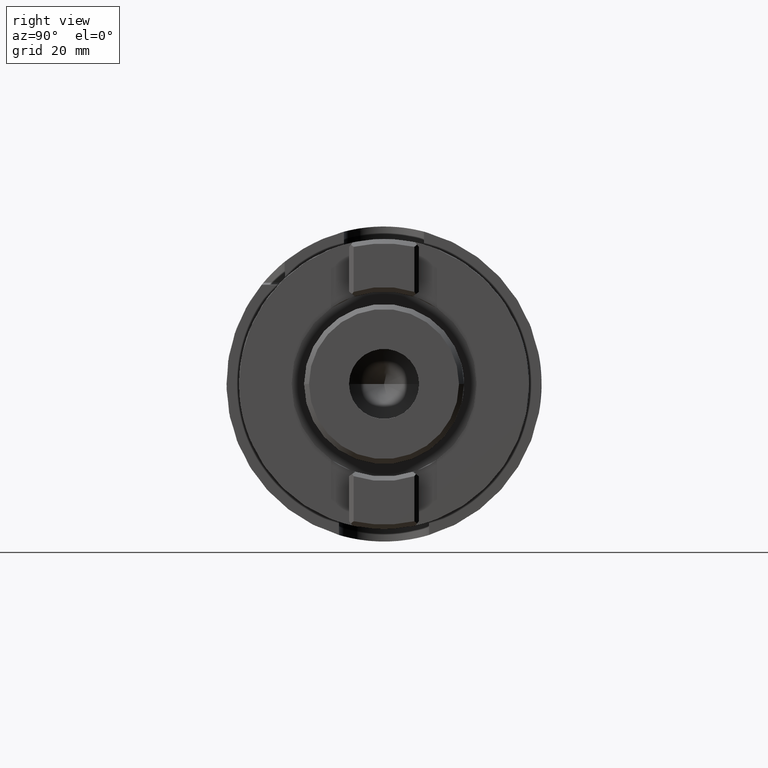
[diagram: clean part render]
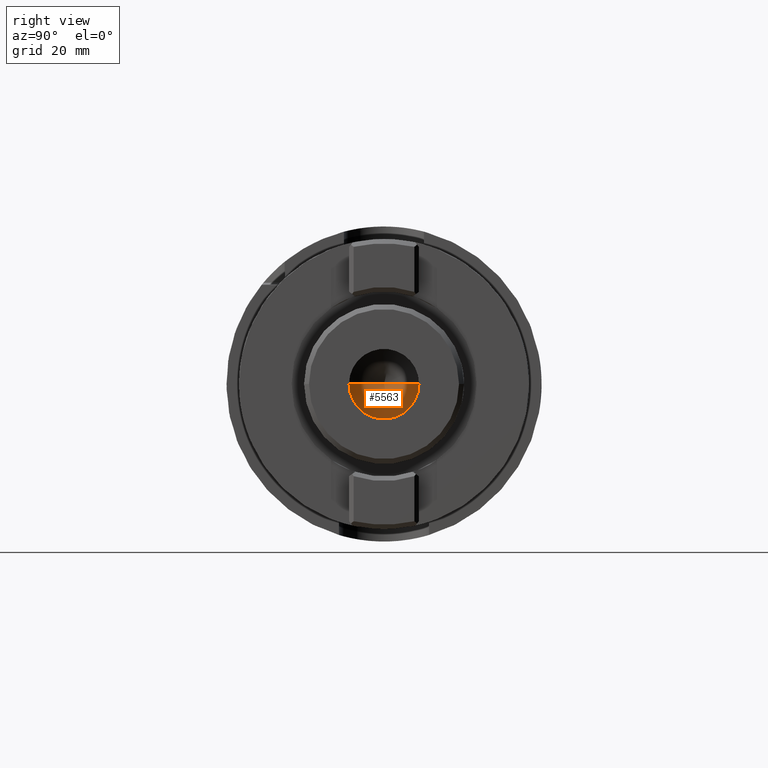
[diagram: same view with one face highlighted and labeled with its STEP entity id]
A machine part, right view. The second image highlights one B-rep face of the part: STEP entity #5563.
In plain terms, the highlighted conical surface has half-angle 59 deg.
Its self-contained STEP definition (entity closure, byte-faithful):
#1787=CARTESIAN_POINT('',(4.1E1,0.E0,0.E0));
#1788=DIRECTION('',(1.E0,0.E0,0.E0));
#1789=DIRECTION('',(0.E0,-1.E0,0.E0));
#1790=AXIS2_PLACEMENT_3D('',#1787,#1788,#1789);
#1805=DIRECTION('',(5.150380749101E-1,-8.571673007021E-1,0.E0));
#1806=VECTOR('',#1805,8.166433780507E0);
#1807=CARTESIAN_POINT('',(3.679397566681E1,0.E0,0.E0));
#1808=LINE('',#1807,#1806);
#1809=DIRECTION('',(5.150380749101E-1,8.571673007021E-1,0.E0));
#1810=VECTOR('',#1809,8.166433780507E0);
#1811=CARTESIAN_POINT('',(3.679397566681E1,0.E0,0.E0));
#1812=LINE('',#1811,#1810);
#3527=CARTESIAN_POINT('',(3.679397566681E1,0.E0,0.E0));
#3528=CARTESIAN_POINT('',(4.1E1,-7.E0,0.E0));
#3529=VERTEX_POINT('',#3527);
#3530=VERTEX_POINT('',#3528);
#3531=CARTESIAN_POINT('',(4.1E1,7.E0,0.E0));
#3532=VERTEX_POINT('',#3531);
#5553=CARTESIAN_POINT('',(3.889698783340E1,0.E0,0.E0));
#5554=DIRECTION('',(1.E0,0.E0,0.E0));
#5555=DIRECTION('',(0.E0,-1.E0,0.E0));
#5556=AXIS2_PLACEMENT_3D('',#5553,#5554,#5555);
#5557=CONICAL_SURFACE('',#5556,3.5E0,5.9E1);
#5558=ORIENTED_EDGE('',*,*,#5545,.F.);
#5559=ORIENTED_EDGE('',*,*,#5548,.T.);
#5560=ORIENTED_EDGE('',*,*,#5520,.F.);
#5561=EDGE_LOOP('',(#5558,#5559,#5560));
#5562=FACE_OUTER_BOUND('',#5561,.F.);
#5563=ADVANCED_FACE('',(#5562),#5557,.F.);
#1791=CIRCLE('',#1790,7.E0);
#5520=EDGE_CURVE('',#3530,#3532,#1791,.T.);
#5545=EDGE_CURVE('',#3529,#3530,#1808,.T.);
#5548=EDGE_CURVE('',#3529,#3532,#1812,.T.);